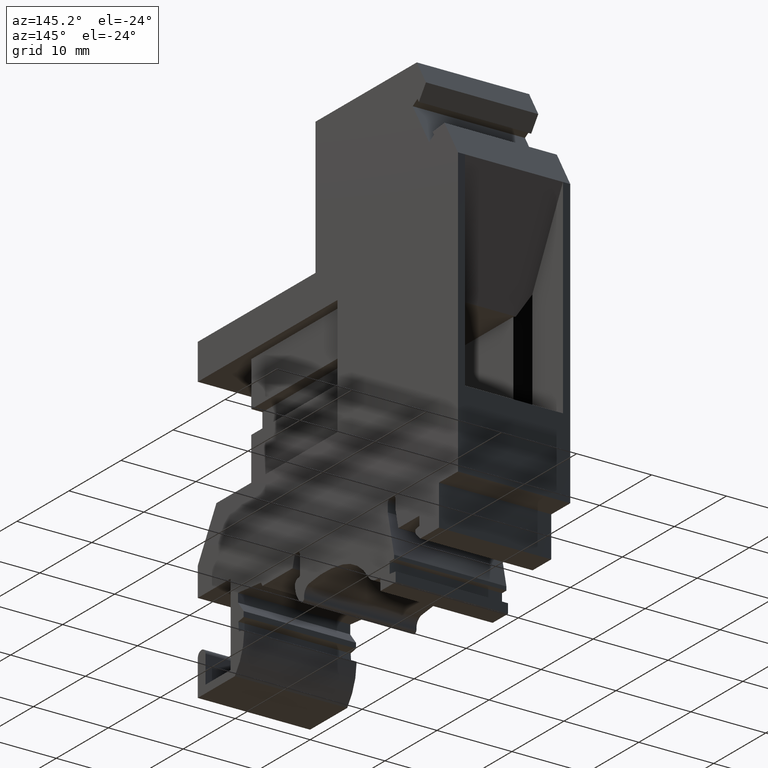
[diagram: clean part render]
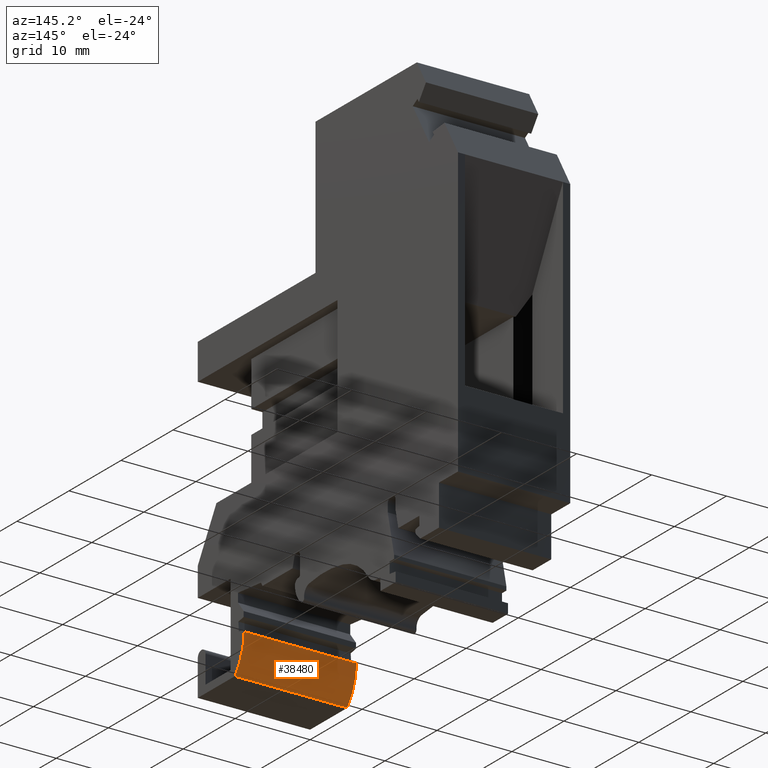
[diagram: same view with one face highlighted and labeled with its STEP entity id]
A machine part, auxiliary view. The second image highlights one B-rep face of the part: STEP entity #38480.
In plain terms, the highlighted cylindrical surface (partial cylindrical patch) has radius 7.466 mm, axis along (1, -0, 0).
Its self-contained STEP definition (entity closure, byte-faithful):
#11080=CARTESIAN_POINT('',(17.9645836000123,-62.1,7.50000000000002));
#11090=VERTEX_POINT('',#11080);
#11120=CARTESIAN_POINT('',(23.6343810046002,-57.2425126411953,
7.50000000000002));
#11130=DIRECTION('',(0.,0.,-1.));
#11140=DIRECTION('',(-1.,0.,0.));
#11150=AXIS2_PLACEMENT_3D('',#11120,#11130,#11140);
#11160=CIRCLE('',#11150,7.46604219449766);
#11170=CARTESIAN_POINT('',(16.17,-57.400000000001,7.50000000000002));
#11180=VERTEX_POINT('',#11170);
#11190=EDGE_CURVE('',#11090,#11180,#11160,.T.);
#15990=CARTESIAN_POINT('',(17.9645836000123,-62.1,-7.49999999999998));
#16000=VERTEX_POINT('',#15990);
#16030=CARTESIAN_POINT('',(17.9645836000123,-62.1,7.51500000000002));
#16040=DIRECTION('',(0.,0.,1.));
#16050=VECTOR('',#16040,1.);
#16060=LINE('',#16030,#16050);
#16070=EDGE_CURVE('',#16000,#11090,#16060,.T.);
#20820=CARTESIAN_POINT('',(16.17,-57.4,7.51500000000002));
#20830=DIRECTION('',(0.,0.,-1.));
#20840=VECTOR('',#20830,1.);
#20850=LINE('',#20820,#20840);
#20860=CARTESIAN_POINT('',(16.17,-57.400000000001,-7.49999999999998));
#20870=VERTEX_POINT('',#20860);
#20880=EDGE_CURVE('',#11180,#20870,#20850,.T.);
#28150=CARTESIAN_POINT('',(23.6343810046002,-57.2425126411953,
-7.49999999999998));
#28160=DIRECTION('',(0.,0.,-1.));
#28170=DIRECTION('',(-1.,0.,0.));
#28180=AXIS2_PLACEMENT_3D('',#28150,#28160,#28170);
#28190=CIRCLE('',#28180,7.46604219449766);
#28200=EDGE_CURVE('',#16000,#20870,#28190,.T.);
#38370=CARTESIAN_POINT('',(23.6343810046002,-57.2425126411953,
7.51500000000002));
#38380=DIRECTION('',(0.,0.,-1.));
#38390=DIRECTION('',(-1.,0.,0.));
#38400=AXIS2_PLACEMENT_3D('',#38370,#38380,#38390);
#38410=CYLINDRICAL_SURFACE('',#38400,7.46604219449766);
#38420=ORIENTED_EDGE('',*,*,#16070,.T.);
#38430=ORIENTED_EDGE('',*,*,#28200,.F.);
#38440=ORIENTED_EDGE('',*,*,#20880,.T.);
#38450=ORIENTED_EDGE('',*,*,#11190,.T.);
#38460=EDGE_LOOP('',(#38450,#38440,#38430,#38420));
#38470=FACE_OUTER_BOUND('',#38460,.T.);
#38480=ADVANCED_FACE('',(#38470),#38410,.T.);